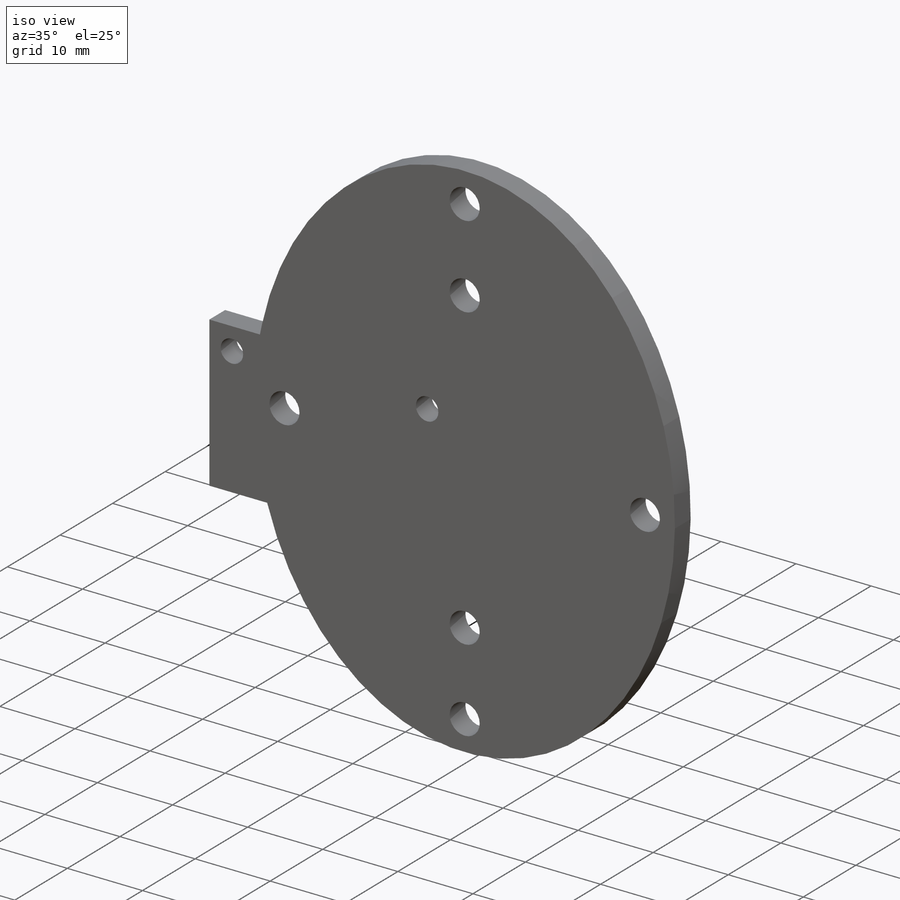
[diagram: iso view]
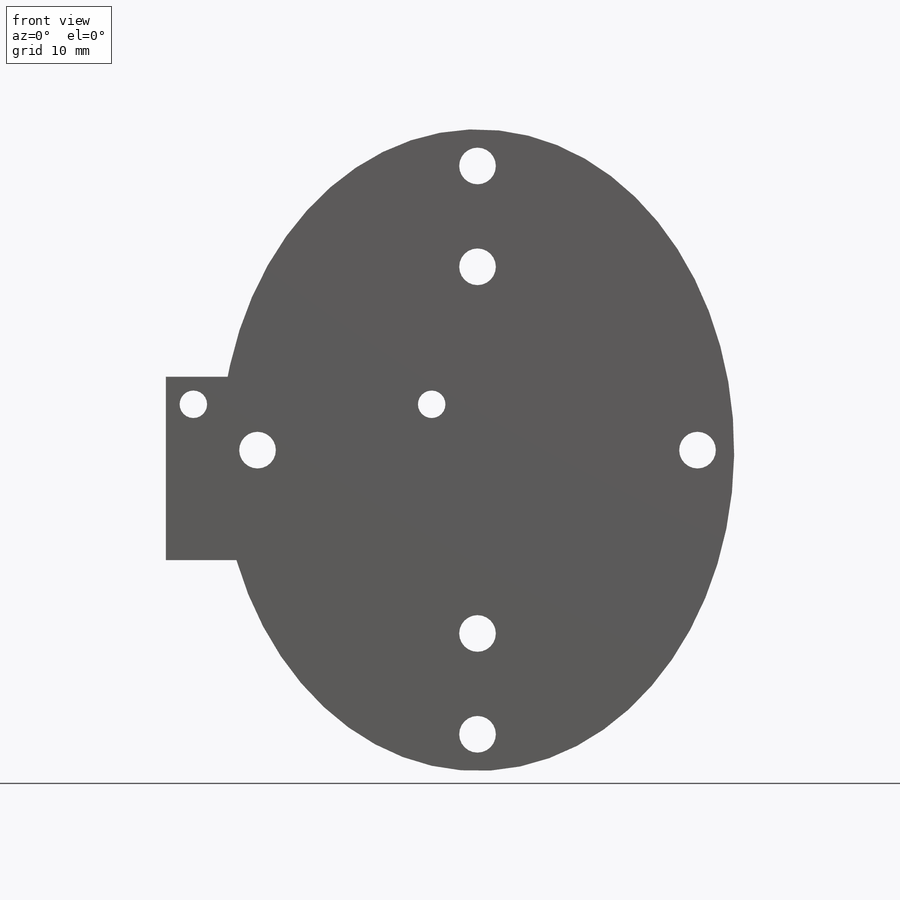
[diagram: front view]
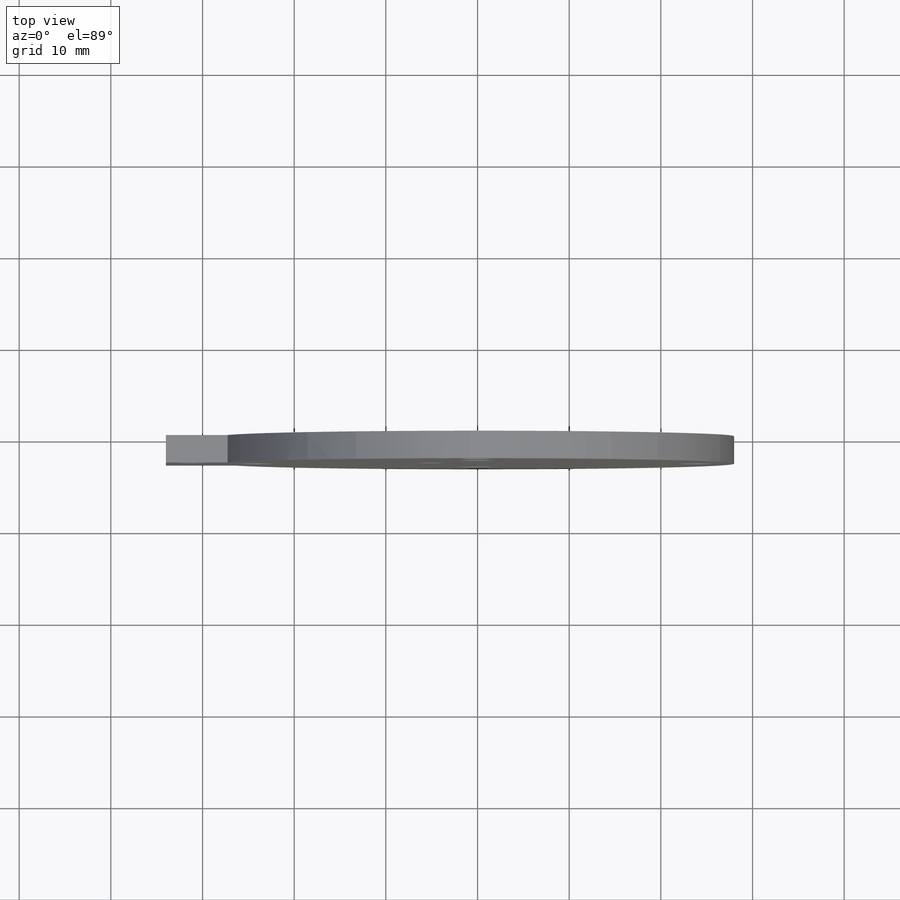
[diagram: top view]
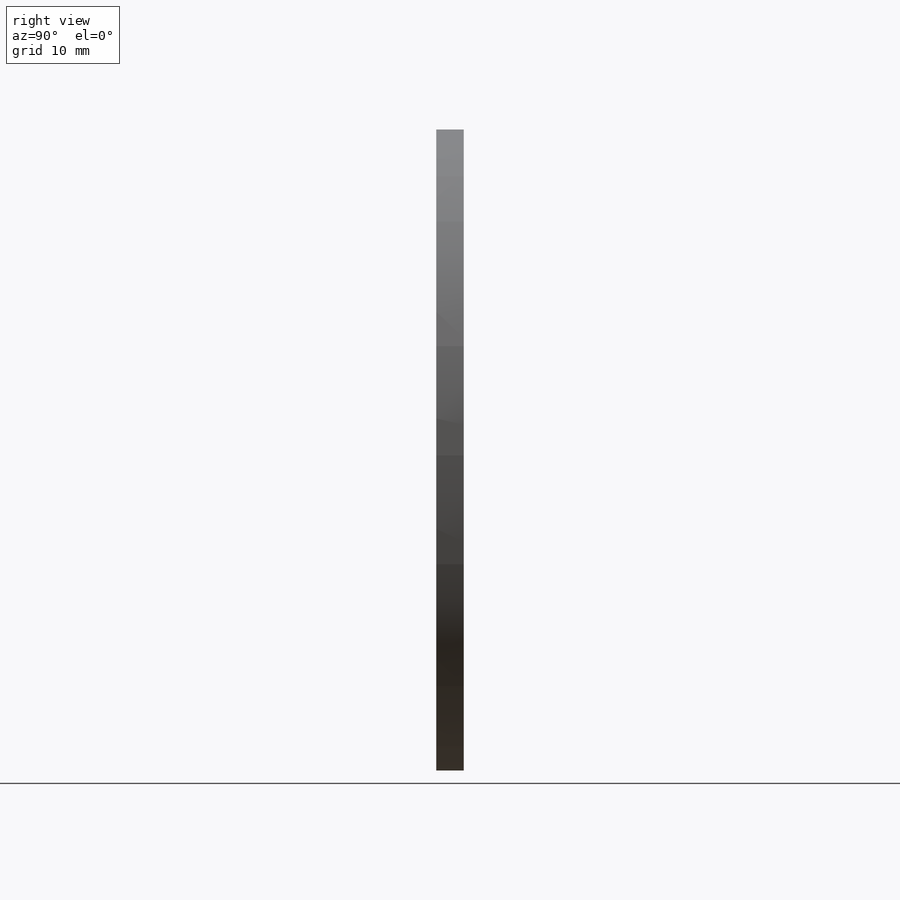
[diagram: right view]
SOLIDWORKS PART (.sldprt)
format: sldprt  version: not decoded by parser v0  size: 313,344 bytes
history: native  units: mm
features: sketch x4, plane x3, extrude x2, cut_extrude x2, material x1 (+10 scaffold rows collapsed)
feature tree (22):
  scaffold x10  (default folders/planes/origin — collapsed)
  material  "Balsa"
  plane  "Plan de face"
  plane  "Plan de dessus"
  plane  "Plan de droite"
  sketch  "Esquisse1"  dims[c1.D1=4.0mm c1.D4=4.0mm c2.D1=30.0mm c2.D2=20.0mm c2.D3=20.0mm c3.D2=~43.441425mm c3.D3=20.0mm c4.D2=20.0mm c4.D5=28.0mm]
  extrude  "Boss.-Extru.1"  Depth=3mm
  sketch  "Esquisse2"  dims[c1.D1=4.0mm c1.D2=4.0mm c1.D3=4.0mm c1.D4=4.0mm c1.D5=24.0mm c1.D6=~30.001479mm c1.D7=~30.001479mm c2.D6=~30.001479mm c2.D7=~36.01474mm c3.D6=31.0mm c3.D7=24.0mm c3.D8=31.0mm]
  cut_extrude  "Enlèv. mat.-Extru.1"  Depth=10mm
  sketch  "Esquisse4"  dims[c1.D1=20.0mm c1.D2=5.0mm c1.D3=8.0mm c2.D2=8.0mm c2.D4=26.0mm]
  extrude  "Boss.-Extru.2"  Depth=3mm
  sketch  "Esquisse3"  dims[c1.D1=3.0mm c1.D2=3.0mm c1.D3=3.0mm c1.D4=3.0mm c1.D5=3.0mm c2.D3=5.0mm c2.D4=5.0mm c2.D5=26.0mm c2.D6=5.0mm]
  cut_extrude  "Enlèv. mat.-Extru.2"  Depth=10mm
decode coverage: 8 of 8 modeling features carry decoded parameters
note: ~ marks probable driven/reference dimensions
note: suppression state not decoded; provenance and decode notes live in map.json
